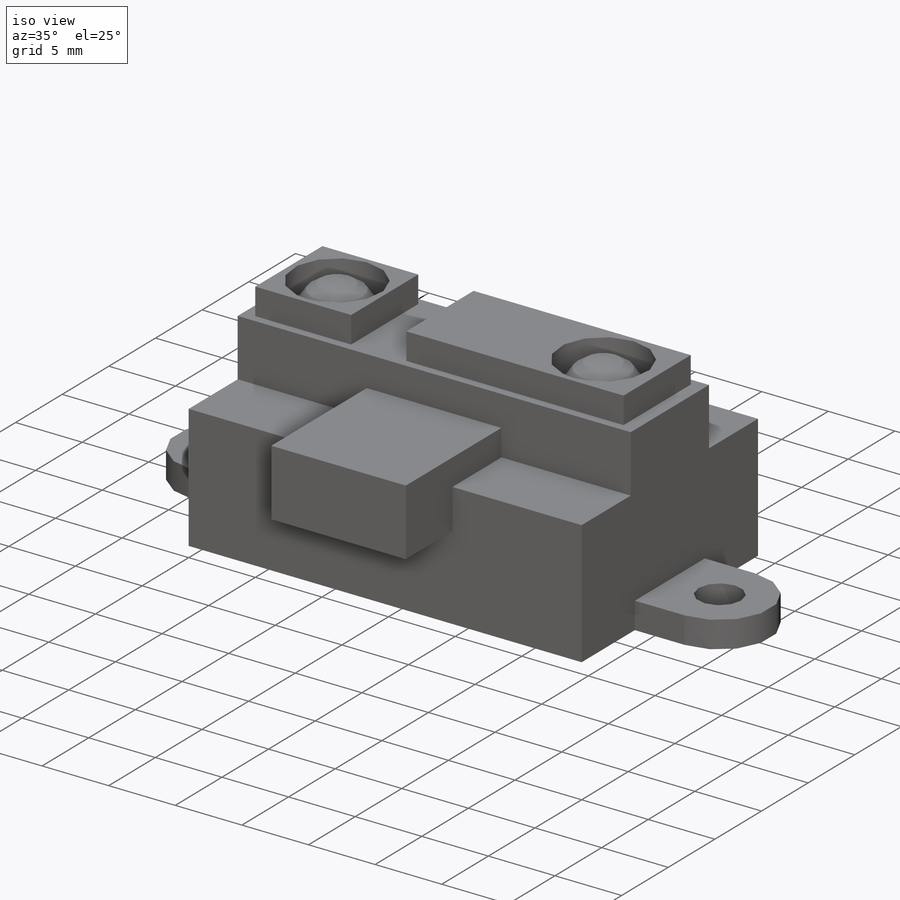
[diagram: iso view]
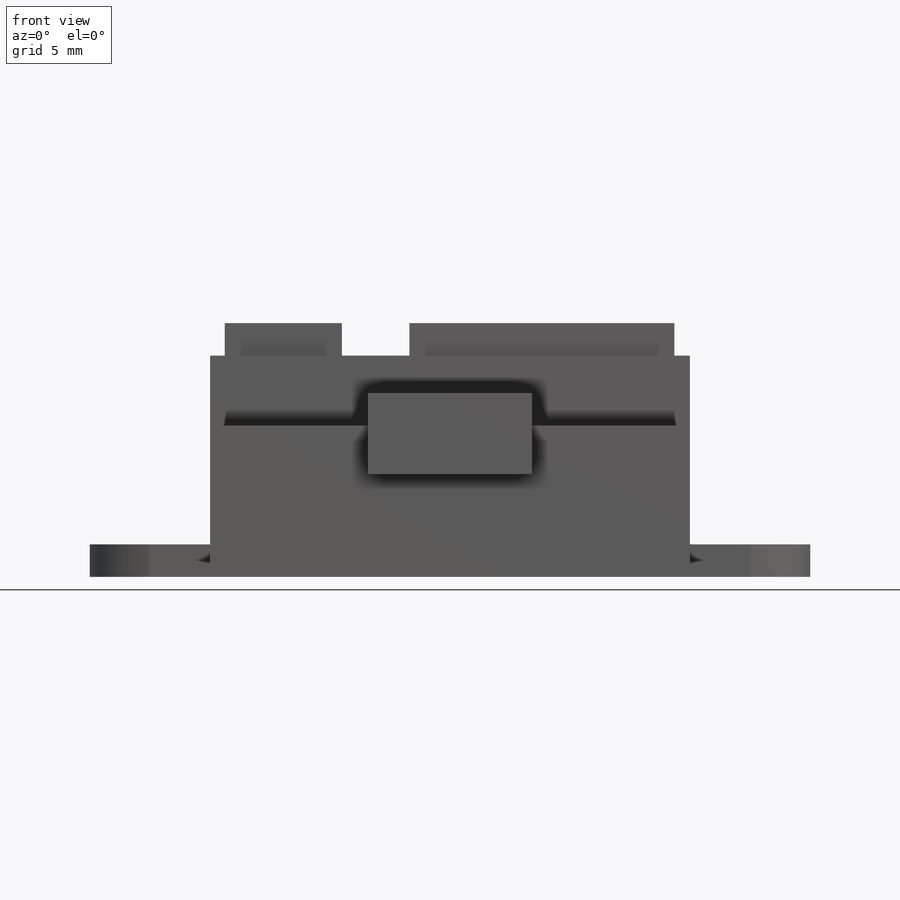
[diagram: front view]
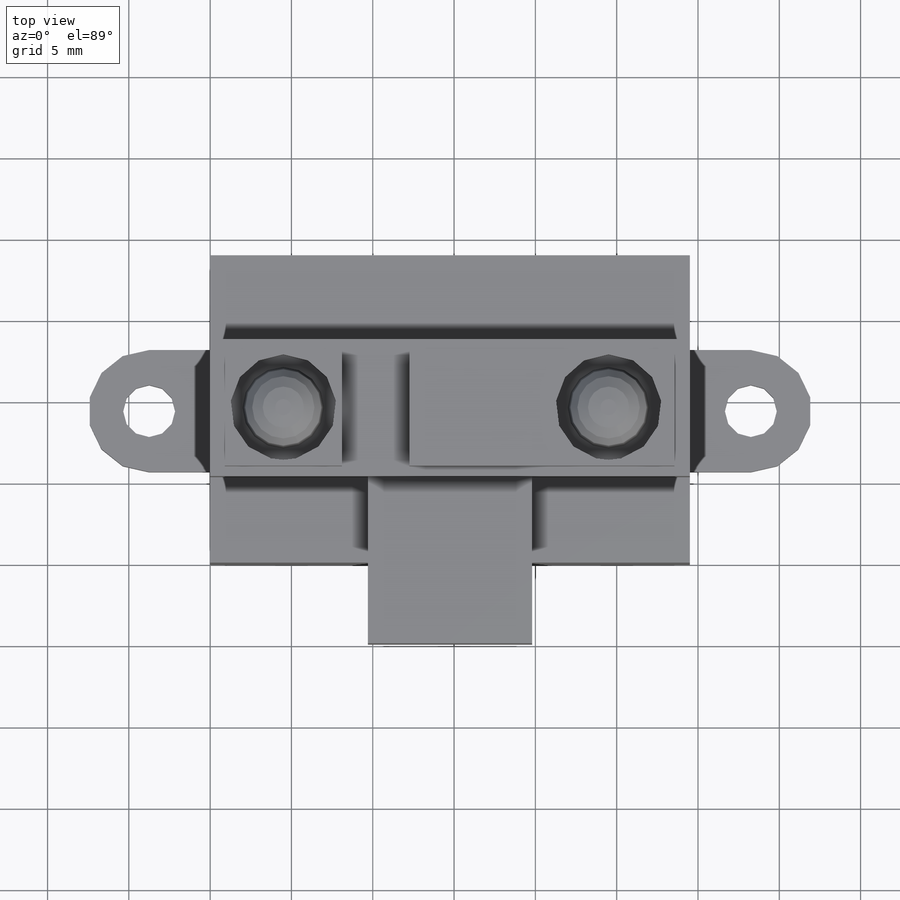
[diagram: top view]
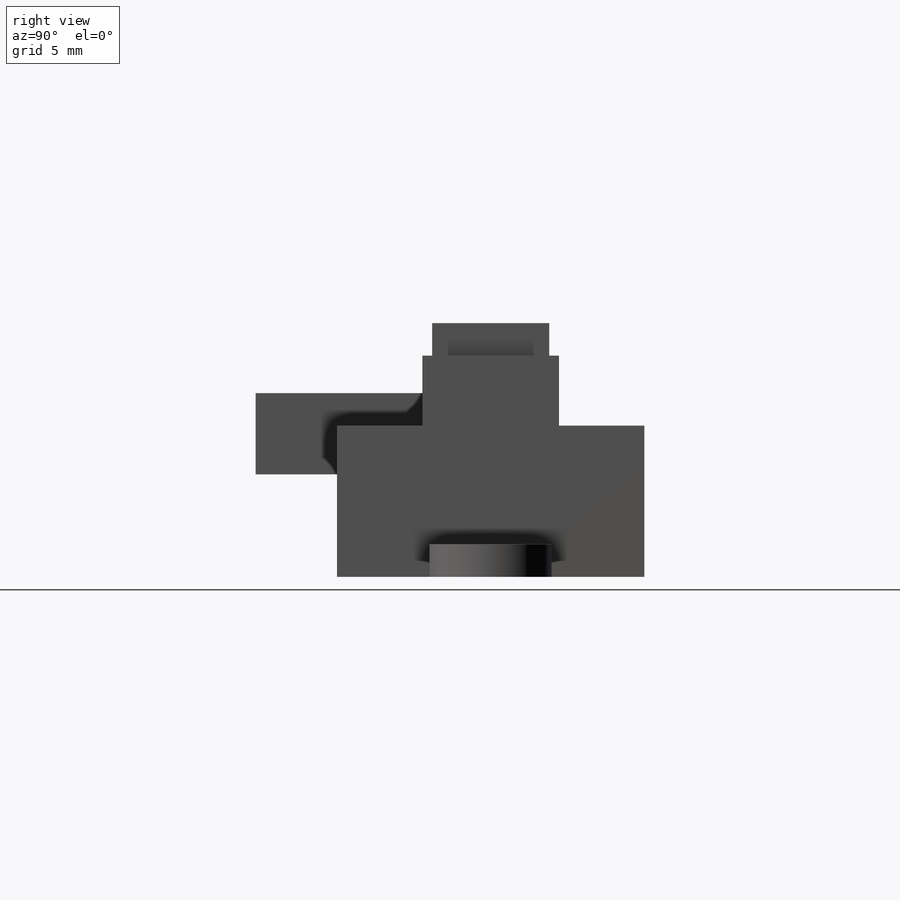
[diagram: right view]
SOLIDWORKS PART (.sldprt)
format: sldprt  version: not decoded by parser v0  size: 233,984 bytes
history: native  units: mm
features: sketch x7, extrude x7, plane x3, material x1, fillet x1 (+9 scaffold rows collapsed)
feature tree (28):
  scaffold x9  (default folders/planes/origin — collapsed)
  material  "Material <not specified>"
  plane  "Face"
  plane  "Dessus"
  plane  "Droite"
  sketch  "Esquisse1"  dims[D1=29.5mm D2=18.9mm]
  extrude  "Extrusion1"  Depth=9.3mm
  sketch  "Esquisse2"  dims[D1=8.4mm]
  extrude  "Extrusion2"  Depth=4.3mm
  sketch  "Esquisse3"  dims[D4=6.5mm D5=5.0mm D1=4.5mm D2=20.0mm D3=7.2mm D6=4.15mm D7=16.3mm]
  extrude  "Extrusion3"  Depth=2mm
  sketch  "Esquisse4"  dims[D1=5.0mm]
  extrude  "Extrusion4"  Depth=2mm
  fillet  "Congé1"  Radius=2mm
  sketch  "Esquisse5"  dims[D1=3.2mm D2=3.75mm D3=3.75mm]
  extrude  "Extrusion5"  Depth=2mm
  sketch  "Esquisse6"  dims[D1=10.1mm D2=5.0mm]
  extrude  "Extrusion6"  Depth=2mm
  sketch  "Esquisse7"
  extrude  "Extrusion7"  Depth=3mm
decode coverage: 14 of 15 modeling features carry decoded parameters
note: suppression state not decoded; provenance and decode notes live in map.json
